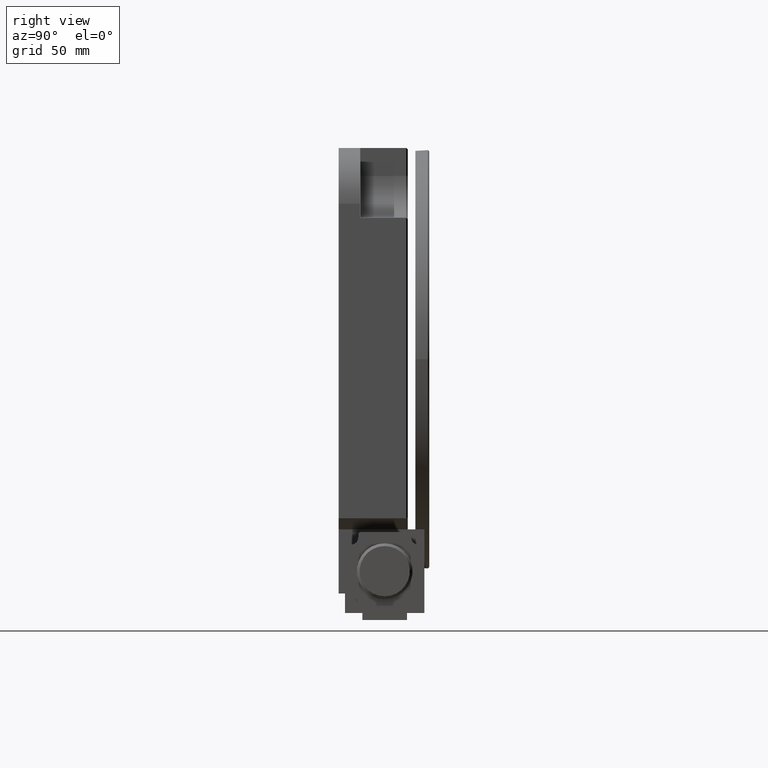
[diagram: clean part render]
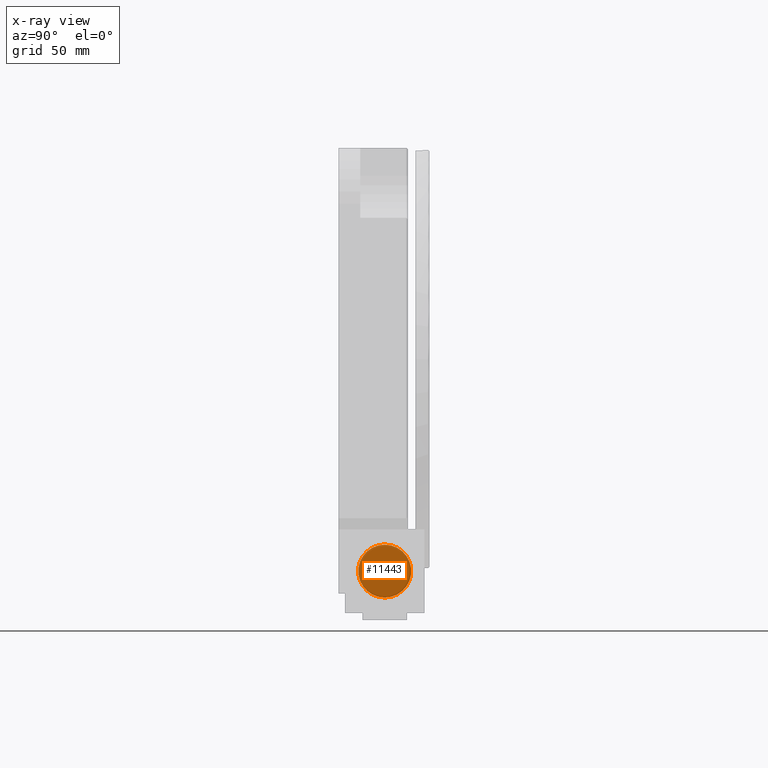
[diagram: x-ray — body ghosted, one internal face saturated and labeled with its STEP entity id]
A machine part, right view, then the same camera in x-ray: the body is ghosted and one INTERNAL B-rep face — a face not visible from any outside direction — is saturated and labeled: STEP entity #11443.
In plain terms, the highlighted planar face has unit normal (-1, -0, 0).
Its self-contained STEP definition (entity closure, byte-faithful):
#139 = AXIS2_PLACEMENT_3D ( 'NONE', #15275, #11661, #3543 ) ;
#299 = FACE_OUTER_BOUND ( 'NONE', #2329, .T. ) ;
#748 = ORIENTED_EDGE ( 'NONE', *, *, #9126, .F. ) ;
#960 = EDGE_LOOP ( 'NONE', ( #12916, #11897 ) ) ;
#1373 = DIRECTION ( 'NONE',  ( 0.0000000000000000000, 3.652049423109075200E-016, 1.000000000000000000 ) ) ;
#1383 = EDGE_CURVE ( 'NONE', #5048, #1479, #2567, .T. ) ;
#1479 = VERTEX_POINT ( 'NONE', #9456 ) ;
#2329 = EDGE_LOOP ( 'NONE', ( #8997, #748 ) ) ;
#2567 = CIRCLE ( 'NONE', #139, 3.174999999999983400 ) ;
#3543 = DIRECTION ( 'NONE',  ( 0.0000000000000000000, 0.0000000000000000000, 1.000000000000000000 ) ) ;
#3598 = DIRECTION ( 'NONE',  ( 1.000000000000000000, 1.573888871122365400E-016, -1.107136283282465800E-015 ) ) ;
#3661 = CARTESIAN_POINT ( 'NONE',  ( 293.1999999999999300, 32.99999999999983700, -322.4999999999997700 ) ) ;
#3961 = DIRECTION ( 'NONE',  ( -1.107136283282465800E-015, -2.775557561562892300E-016, -1.000000000000000000 ) ) ;
#3983 = CARTESIAN_POINT ( 'NONE',  ( 293.1999999999999300, 32.99999999999984400, -303.4999999999998300 ) ) ;
#4392 = EDGE_CURVE ( 'NONE', #9053, #10857, #11857, .T. ) ;
#5048 = VERTEX_POINT ( 'NONE', #8312 ) ;
#5073 = CARTESIAN_POINT ( 'NONE',  ( 293.1999999999999300, 32.99999999999984400, -303.4999999999998300 ) ) ;
#5914 = CARTESIAN_POINT ( 'NONE',  ( 293.1999999999999300, 32.99999999999985100, -284.4999999999998900 ) ) ;
#7748 = CARTESIAN_POINT ( 'NONE',  ( 293.1999999999999300, 32.99999999999985100, -303.4999999999997200 ) ) ;
#8070 = AXIS2_PLACEMENT_3D ( 'NONE', #3983, #12083, #1373 ) ;
#8178 = CARTESIAN_POINT ( 'NONE',  ( 293.1999999999999300, 32.99999999999984400, -303.4999999999998300 ) ) ;
#8312 = CARTESIAN_POINT ( 'NONE',  ( 293.1999999999999300, 32.99999999999985100, -306.6749999999996700 ) ) ;
#8997 = ORIENTED_EDGE ( 'NONE', *, *, #4392, .F. ) ;
#9023 = DIRECTION ( 'NONE',  ( 1.000000000000000000, 1.573888871122365400E-016, -1.107136283282465800E-015 ) ) ;
#9053 = VERTEX_POINT ( 'NONE', #5914 ) ;
#9126 = EDGE_CURVE ( 'NONE', #10857, #9053, #11388, .T. ) ;
#9456 = CARTESIAN_POINT ( 'NONE',  ( 293.1999999999999300, 32.99999999999985100, -300.3249999999997000 ) ) ;
#10082 = AXIS2_PLACEMENT_3D ( 'NONE', #8178, #3598, #14092 ) ;
#10181 = DIRECTION ( 'NONE',  ( 0.0000000000000000000, 0.0000000000000000000, 1.000000000000000000 ) ) ;
#10836 = DIRECTION ( 'NONE',  ( -1.000000000000000000, -4.818958719358302400E-017, 1.107136283282465800E-015 ) ) ;
#10857 = VERTEX_POINT ( 'NONE', #3661 ) ;
#11058 = EDGE_CURVE ( 'NONE', #1479, #5048, #12002, .T. ) ;
#11388 = CIRCLE ( 'NONE', #8070, 18.99999999999996100 ) ;
#11443 = ADVANCED_FACE ( 'NONE', ( #12724, #299 ), #13184, .T. ) ;
#11661 = DIRECTION ( 'NONE',  ( 1.000000000000000000, 1.573888871122365400E-016, -1.107136283282465800E-015 ) ) ;
#11857 = CIRCLE ( 'NONE', #10082, 18.99999999999996100 ) ;
#11897 = ORIENTED_EDGE ( 'NONE', *, *, #1383, .T. ) ;
#12002 = CIRCLE ( 'NONE', #14076, 3.174999999999983400 ) ;
#12083 = DIRECTION ( 'NONE',  ( 1.000000000000000000, 1.573888871122365400E-016, -1.107136283282465800E-015 ) ) ;
#12448 = AXIS2_PLACEMENT_3D ( 'NONE', #5073, #10836, #3961 ) ;
#12724 = FACE_BOUND ( 'NONE', #960, .T. ) ;
#12916 = ORIENTED_EDGE ( 'NONE', *, *, #11058, .T. ) ;
#13184 = PLANE ( 'NONE',  #12448 ) ;
#14076 = AXIS2_PLACEMENT_3D ( 'NONE', #7748, #9023, #10181 ) ;
#14092 = DIRECTION ( 'NONE',  ( 0.0000000000000000000, 3.652049423109075200E-016, 1.000000000000000000 ) ) ;
#15275 = CARTESIAN_POINT ( 'NONE',  ( 293.1999999999999300, 32.99999999999985100, -303.4999999999997200 ) ) ;